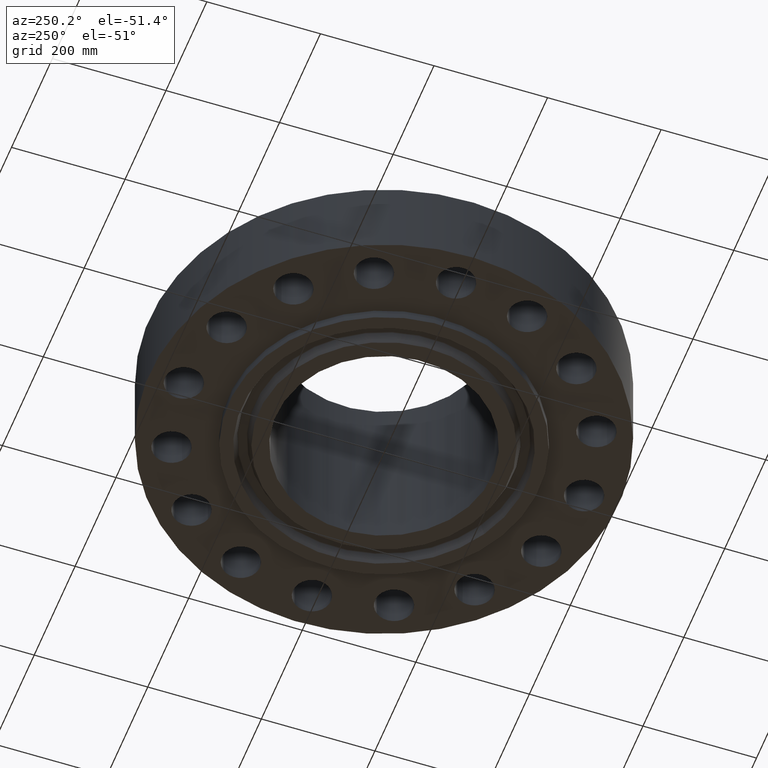
[diagram: clean part render]
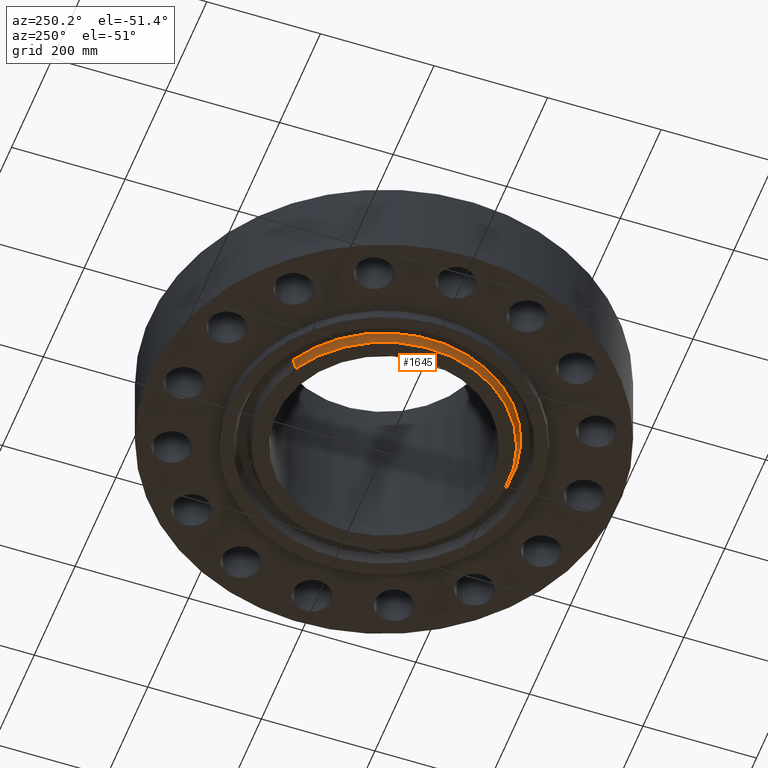
[diagram: same view with one face highlighted and labeled with its STEP entity id]
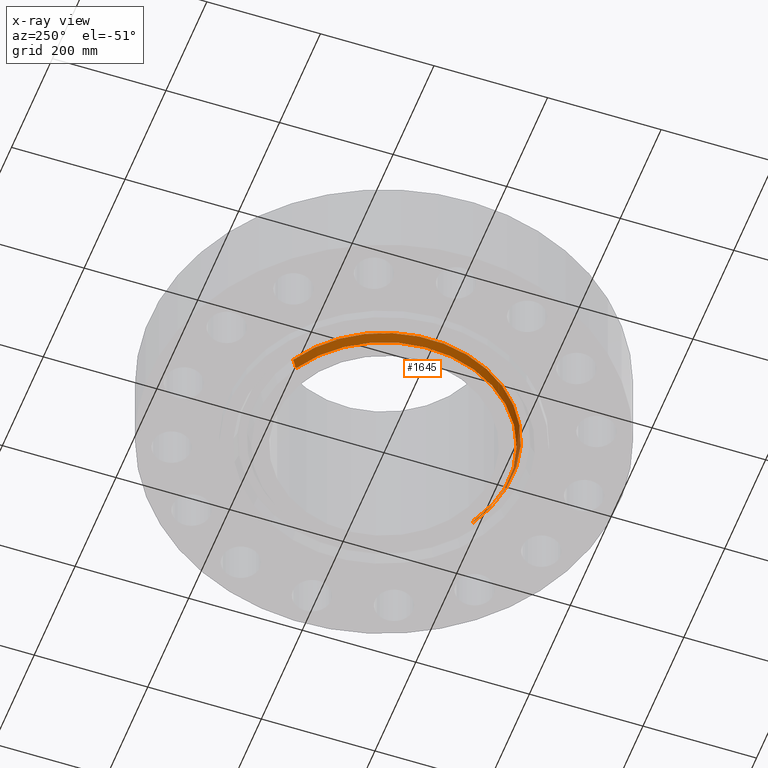
[diagram: x-ray of the same camera — body ghosted, the highlighted face saturated]
A machine part, auxiliary view. The second image highlights one B-rep face of the part: STEP entity #1645.
The next image is the same camera in x-ray: the body ghosted, the highlighted face saturated — about 0% of this face is hidden behind the body in this view.
In plain terms, the highlighted conical surface has half-angle 23 deg.
Its self-contained STEP definition (entity closure, byte-faithful):
#1453=AXIS2_PLACEMENT_3D('Circle Axis2P3D',#1451,#1452,$) ;
#1607=AXIS2_PLACEMENT_3D('Circle Axis2P3D',#1605,#1606,$) ;
#1620=AXIS2_PLACEMENT_3D('Cone Axis2P3D',#1617,#1618,#1619) ;
#1446=CARTESIAN_POINT('Vertex',(-4.14990746217,7.59635465575,-0.688000000003)) ;
#1448=CARTESIAN_POINT('Vertex',(4.14990746217,-7.59635465575,-0.688000000003)) ;
#1451=CARTESIAN_POINT('Axis2P3D Location',(-1.1189649382E-015,1.1189649382E-015,-0.688000000003)) ;
#1583=CARTESIAN_POINT('Vertex',(4.27826332335,-7.83130848364,-0.0572712739222)) ;
#1590=CARTESIAN_POINT('Vertex',(-4.27826332335,7.83130848364,-0.0572712739222)) ;
#1605=CARTESIAN_POINT('Axis2P3D Location',(0.,0.,-0.0572712739222)) ;
#1617=CARTESIAN_POINT('Axis2P3D Location',(0.,0.,-0.748000000003)) ;
#1622=CARTESIAN_POINT('Line Origine',(-4.21408539276,7.7138315697,-0.372635636962)) ;
#1627=CARTESIAN_POINT('Line Origine',(4.21408539276,-7.7138315697,-0.372635636962)) ;
#1452=DIRECTION('Axis2P3D Direction',(0.,0.,-0.0393700787402)) ;
#1606=DIRECTION('Axis2P3D Direction',(0.,0.,0.0393700787402)) ;
#1618=DIRECTION('Axis2P3D Direction',(0.,0.,0.0393700787402)) ;
#1619=DIRECTION('Axis2P3D XDirection',(-0.0188750212049,0.0345504945626,0.)) ;
#1623=DIRECTION('Vector Direction',(-0.00737505833565,0.0134999537303,0.0362403485611)) ;
#1628=DIRECTION('Vector Direction',(0.00737505833565,-0.0134999537303,0.0362403485611)) ;
#1624=VECTOR('Line Direction',#1623,0.0393700787402) ;
#1629=VECTOR('Line Direction',#1628,0.0393700787402) ;
#1640=ORIENTED_EDGE('',*,*,#1631,.F.) ;
#1641=ORIENTED_EDGE('',*,*,#1609,.F.) ;
#1642=ORIENTED_EDGE('',*,*,#1626,.T.) ;
#1643=ORIENTED_EDGE('',*,*,#1455,.F.) ;
#1645=ADVANCED_FACE('PartBody',(#1644),#1621,.T.) ;
#1454=CIRCLE('generated circle',#1453,8.65600000003) ;
#1608=CIRCLE('generated circle',#1607,8.92372846012) ;
#1621=CONICAL_SURFACE('Cone',#1620,8.63053151106,0.401425727959) ;
#1455=EDGE_CURVE('',#1449,#1447,#1454,.T.) ;
#1609=EDGE_CURVE('',#1591,#1584,#1608,.T.) ;
#1626=EDGE_CURVE('',#1591,#1447,#1625,.F.) ;
#1631=EDGE_CURVE('',#1584,#1449,#1630,.F.) ;
#1639=EDGE_LOOP('',(#1640,#1641,#1642,#1643)) ;
#1644=FACE_OUTER_BOUND('',#1639,.T.) ;
#1625=LINE('Line',#1622,#1624) ;
#1630=LINE('Line',#1627,#1629) ;
#1447=VERTEX_POINT('',#1446) ;
#1449=VERTEX_POINT('',#1448) ;
#1584=VERTEX_POINT('',#1583) ;
#1591=VERTEX_POINT('',#1590) ;